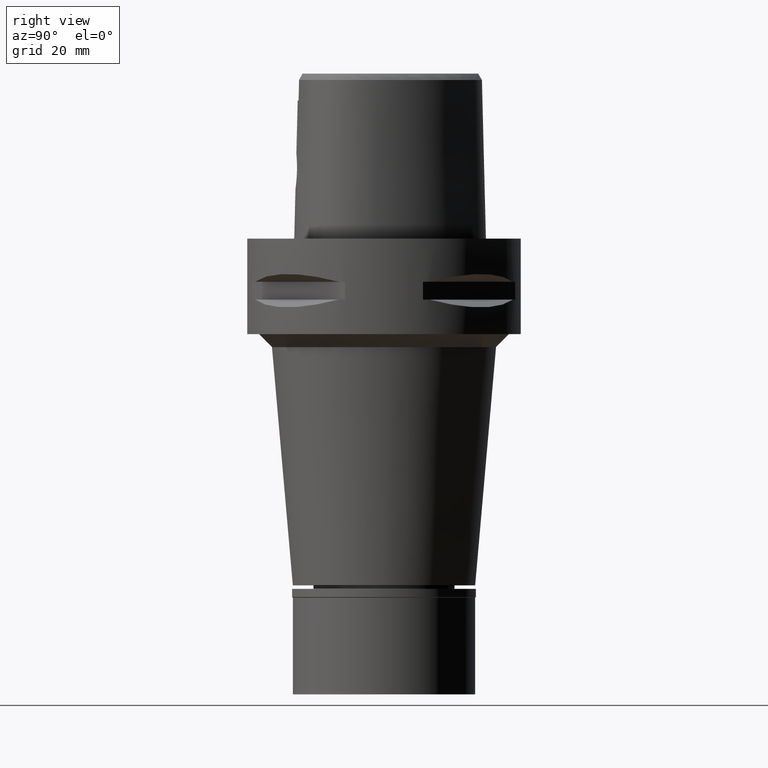
[diagram: clean part render]
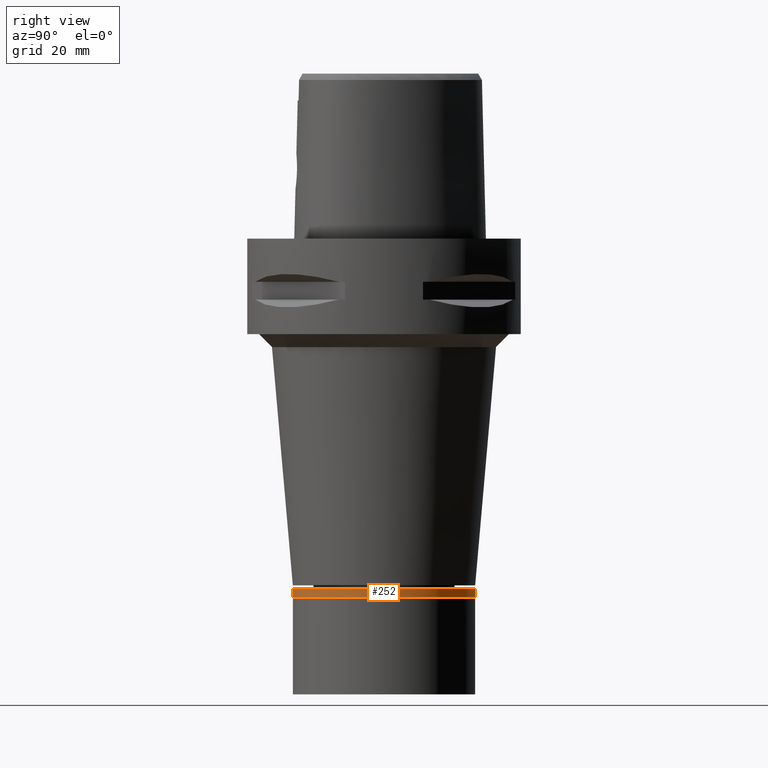
[diagram: same view with one face highlighted and labeled with its STEP entity id]
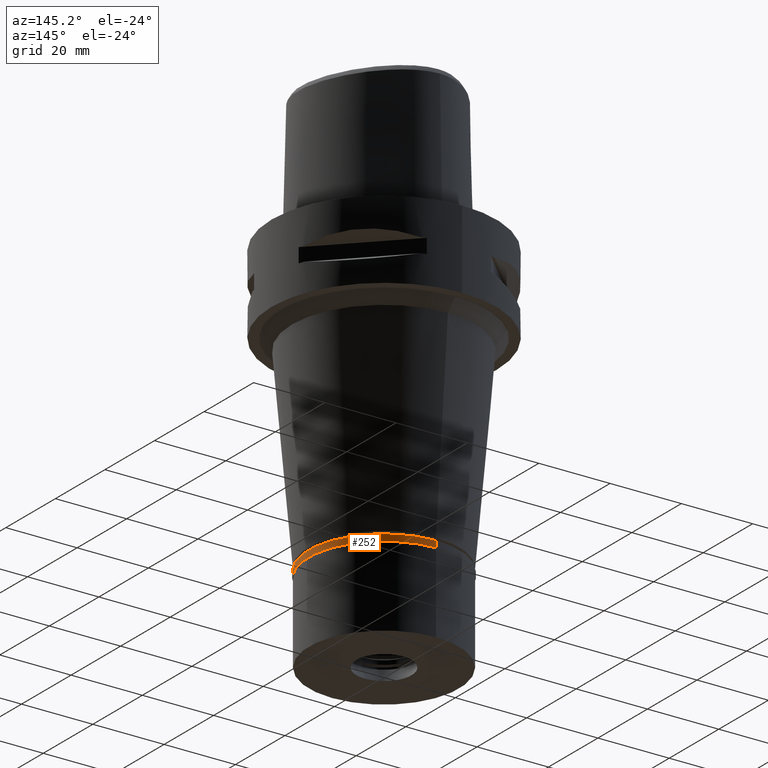
[diagram: same view with one face highlighted and labeled with its STEP entity id]
A machine part, right view. The second image highlights one B-rep face of the part: STEP entity #252.
A second angle (auxiliary view) of the same face is appended — the face is thin or edge-on in the first view.
In plain terms, the highlighted cylindrical surface (partial cylindrical patch) has radius 21.15 mm, axis along (0, 0, -1).
Its self-contained STEP definition (entity closure, byte-faithful):
#128 = AXIS2_PLACEMENT_3D ( 'NONE', #1902, #3050, #731 ) ;
#252 = ADVANCED_FACE ( 'NONE', ( #4833 ), #3701, .T. ) ;
#678 = DIRECTION ( 'NONE',  ( 0.0000000000000000000, 0.0000000000000000000, -1.000000000000000000 ) ) ;
#731 = DIRECTION ( 'NONE',  ( 0.0000000000000000000, -1.000000000000000000, 0.0000000000000000000 ) ) ;
#777 = LINE ( 'NONE', #3591, #2567 ) ;
#868 = CARTESIAN_POINT ( 'NONE',  ( 0.0000000000000000000, -21.14999999999999858, 0.0000000000000000000 ) ) ;
#906 = ORIENTED_EDGE ( 'NONE', *, *, #2148, .T. ) ;
#952 = VERTEX_POINT ( 'NONE', #868 ) ;
#986 = DIRECTION ( 'NONE',  ( 0.0000000000000000000, 0.0000000000000000000, -1.000000000000000000 ) ) ;
#1091 = DIRECTION ( 'NONE',  ( 0.0000000000000000000, 1.000000000000000000, 0.0000000000000000000 ) ) ;
#1178 = CARTESIAN_POINT ( 'NONE',  ( 0.0000000000000000000, 21.14999999999999858, -1.850000000000000089 ) ) ;
#1478 = CARTESIAN_POINT ( 'NONE',  ( 0.0000000000000000000, 21.14999999999999858, 0.0000000000000000000 ) ) ;
#1659 = ORIENTED_EDGE ( 'NONE', *, *, #3557, .T. ) ;
#1902 = CARTESIAN_POINT ( 'NONE',  ( 0.0000000000000000000, 0.0000000000000000000, -1.850000000000000089 ) ) ;
#2109 = ORIENTED_EDGE ( 'NONE', *, *, #2241, .F. ) ;
#2148 = EDGE_CURVE ( 'NONE', #4105, #4889, #3030, .T. ) ;
#2241 = EDGE_CURVE ( 'NONE', #3260, #4889, #777, .T. ) ;
#2326 = EDGE_LOOP ( 'NONE', ( #1659, #4361, #906, #2109 ) ) ;
#2456 = DIRECTION ( 'NONE',  ( 0.0000000000000000000, -1.000000000000000000, 0.0000000000000000000 ) ) ;
#2562 = VECTOR ( 'NONE', #4027, 1000.000000000000000 ) ;
#2567 = VECTOR ( 'NONE', #4295, 1000.000000000000000 ) ;
#2656 = AXIS2_PLACEMENT_3D ( 'NONE', #4066, #986, #2456 ) ;
#3030 = CIRCLE ( 'NONE', #128, 21.14999999999999858 ) ;
#3050 = DIRECTION ( 'NONE',  ( 0.0000000000000000000, 0.0000000000000000000, 1.000000000000000000 ) ) ;
#3203 = LINE ( 'NONE', #4747, #2562 ) ;
#3260 = VERTEX_POINT ( 'NONE', #1478 ) ;
#3431 = AXIS2_PLACEMENT_3D ( 'NONE', #4886, #678, #1091 ) ;
#3545 = EDGE_CURVE ( 'NONE', #952, #4105, #3203, .T. ) ;
#3557 = EDGE_CURVE ( 'NONE', #3260, #952, #3677, .T. ) ;
#3591 = CARTESIAN_POINT ( 'NONE',  ( 0.0000000000000000000, 21.14999999999999858, 0.0000000000000000000 ) ) ;
#3677 = CIRCLE ( 'NONE', #3431, 21.14999999999999858 ) ;
#3701 = CYLINDRICAL_SURFACE ( 'NONE', #2656, 21.14999999999999858 ) ;
#4027 = DIRECTION ( 'NONE',  ( 0.0000000000000000000, 0.0000000000000000000, -1.000000000000000000 ) ) ;
#4066 = CARTESIAN_POINT ( 'NONE',  ( 0.0000000000000000000, 0.0000000000000000000, 0.0000000000000000000 ) ) ;
#4105 = VERTEX_POINT ( 'NONE', #4765 ) ;
#4295 = DIRECTION ( 'NONE',  ( 0.0000000000000000000, 0.0000000000000000000, -1.000000000000000000 ) ) ;
#4361 = ORIENTED_EDGE ( 'NONE', *, *, #3545, .T. ) ;
#4747 = CARTESIAN_POINT ( 'NONE',  ( 0.0000000000000000000, -21.14999999999999858, 0.0000000000000000000 ) ) ;
#4765 = CARTESIAN_POINT ( 'NONE',  ( 0.0000000000000000000, -21.14999999999999858, -1.850000000000000089 ) ) ;
#4833 = FACE_OUTER_BOUND ( 'NONE', #2326, .T. ) ;
#4886 = CARTESIAN_POINT ( 'NONE',  ( 0.0000000000000000000, 0.0000000000000000000, 0.0000000000000000000 ) ) ;
#4889 = VERTEX_POINT ( 'NONE', #1178 ) ;